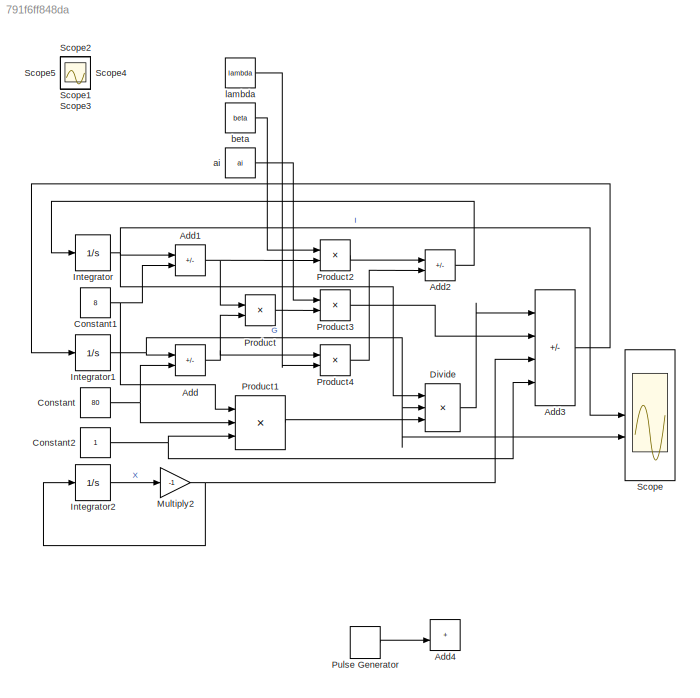
MODEL slx_791f6ff848da
KIND model
CONFIG AbsTol = auto
CONFIG EnableMultiTasking = off
CONFIG FixedStep = auto
CONFIG MaxStep = auto
CONFIG MinStep = auto
CONFIG RelTol = 1e-3
CONFIG SampleTimeConstraint = Unconstrained
CONFIG SolverName = VariableStepAuto
CONFIG StartTime = 0.0
CONFIG StopTime = 200
BLOCK [Sum] Add
  IconShape = rectangular
  Inputs = +-
BLOCK [Sum] Add1
  IconShape = rectangular
  Inputs = +-
BLOCK [Sum] Add2
  IconShape = rectangular
  Inputs = -+
BLOCK [Sum] Add3
  IconShape = rectangular
  Inputs = +---
BLOCK [Sum] Add4
  IconShape = rectangular
BLOCK [Constant] Constant
  Value = 80
BLOCK [Constant] Constant1
  Value = 8
BLOCK [Constant] Constant2
BLOCK [Product] Divide
  Inputs = //*
BLOCK [Integrator] Integrator
  InitialCondition = 8
BLOCK [Integrator] Integrator1
  InitialCondition = 80
BLOCK [Integrator] Integrator2
  InitialCondition = 300
BLOCK [Gain] Multiply2
  Gain = -1
BLOCK [Product] Product
BLOCK [Product] Product1
  Inputs = 3
BLOCK [Product] Product2
BLOCK [Product] Product3
BLOCK [Product] Product4
BLOCK [DiscretePulseGenerator] Pulse Generator
  Amplitude = 10000
  Period = 6
  PulseType = Time based
  PulseWidth = 0.15
BLOCK [Scope] Scope
  Floating = off
  NumInputPorts = 2
  ScopeSpecificationString = Simulink.scopes.TimeScopeBlockCfg('CurrentConfiguration', extmgr.ConfigurationSet(extmgr.Configuration('Core','General UI',true),extmgr.Configuration('Core','Source UI',true),extmgr.Configuration('Sources','WiredSimulink',true,'DataLogging',true,'DataLoggingSaveFormat','StructureWithTime','SampleTime','0.1'),extmgr.Configuration('Visuals','Time Domain',true,'SerializedDisplays',{struct('MinYLimRea...<+1444ch>
BLOCK [Scope] Scope1
  Floating = off
  IOType = viewer
  NumInputPorts = 1
  ScopeSpecificationString = Simulink.scopes.TimeScopeBlockCfg('CurrentConfiguration', extmgr.ConfigurationSet(extmgr.Configuration('Core','General UI',true),extmgr.Configuration('Core','Source UI',true),extmgr.Configuration('Sources','WiredSimulink',true,'DataLoggingVariableName','ScopeData1'),extmgr.Configuration('Visuals','Time Domain',true,'SerializedDisplays',{struct('MinYLimReal','180.00000','MaxYLimReal','380.00000','Y...<+1449ch>
BLOCK [Scope] Scope2
  Floating = off
  IOType = viewer
  NumInputPorts = 1
  ScopeSpecificationString = Simulink.scopes.TimeScopeBlockCfg('CurrentConfiguration', extmgr.ConfigurationSet(extmgr.Configuration('Core','General UI',true),extmgr.Configuration('Core','Source UI',true),extmgr.Configuration('Sources','WiredSimulink',true,'DataLoggingVariableName','ScopeData2'),extmgr.Configuration('Visuals','Time Domain',true,'SerializedDisplays',{struct('MinYLimReal','-0.0187','MaxYLimReal','1.11327','YLabe...<+1395ch>
BLOCK [Scope] Scope3
  Floating = off
  IOType = viewer
  NumInputPorts = 1
  ScopeSpecificationString = Simulink.scopes.TimeScopeBlockCfg('CurrentConfiguration', extmgr.ConfigurationSet(extmgr.Configuration('Core','General UI',true),extmgr.Configuration('Core','Source UI',true),extmgr.Configuration('Sources','WiredSimulink',true,'DataLoggingVariableName','ScopeData3'),extmgr.Configuration('Visuals','Time Domain',true,'SerializedDisplays',{struct('MinYLimReal','-99266765740717605013968894587013624002...<+3761ch>
BLOCK [Scope] Scope4
  Floating = off
  IOType = viewer
  NumInputPorts = 1
  ScopeSpecificationString = Simulink.scopes.TimeScopeBlockCfg('CurrentConfiguration', extmgr.ConfigurationSet(extmgr.Configuration('Core','General UI',true),extmgr.Configuration('Core','Source UI',true),extmgr.Configuration('Sources','WiredSimulink',true,'DataLoggingVariableName','ScopeData4'),extmgr.Configuration('Visuals','Time Domain',true,'SerializedDisplays',{struct('MinYLimReal','-105.31223','MaxYLimReal','-52.18991','...<+1415ch>
BLOCK [Scope] Scope5
  Floating = off
  IOType = viewer
  NumInputPorts = 1
  ScopeSpecificationString = Simulink.scopes.TimeScopeBlockCfg('CurrentConfiguration', extmgr.ConfigurationSet(extmgr.Configuration('Core','General UI',true),extmgr.Configuration('Core','Source UI',true),extmgr.Configuration('Sources','WiredSimulink',true,'DataLoggingVariableName','ScopeData5'),extmgr.Configuration('Visuals','Time Domain',true,'SerializedDisplays',{struct('MinYLimReal','0.9','MaxYLimReal','1.1','YLabelReal','...<+1369ch>
BLOCK [Constant] ai
  Value = ai
BLOCK [Constant] beta
  Value = beta
BLOCK [Constant] lambda
  Value = lambda
NET Add1:1 -> Product2:2, Product:1
LINE Add2:1 -> Integrator:1
LINE Add3:1 -> Integrator1:1
NET Add:1 -> Product4:1, Product:2
NET Constant1:1 -> Add1:2, Product1:1
NET Constant2:1 -> Add3:4, Product1:3
NET Constant:1 -> Add:2, Product1:2
LINE Divide:1 -> Add3:1
NET Integrator1:1 -> Add:1, Divide:2, Scope:2
LINE Integrator2:1 -> Multiply2:1
NET Integrator:1 -> Add1:1, Divide:1, Scope:1
NET Multiply2:1 -> Add3:3, Integrator2:1
LINE Product1:1 -> Divide:3
LINE Product2:1 -> Add2:1
LINE Product3:1 -> Add3:2
LINE Product4:1 -> Add2:2
LINE Product:1 -> Product3:2
LINE Pulse Generator:1 -> Add4:2
LINE ai:1 -> Product3:1
LINE beta:1 -> Product2:1
LINE lambda:1 -> Product4:2
note: NET lines group one-source signal fan-out (src -> all destinations, sorted); 1:1 wires keep LINE
